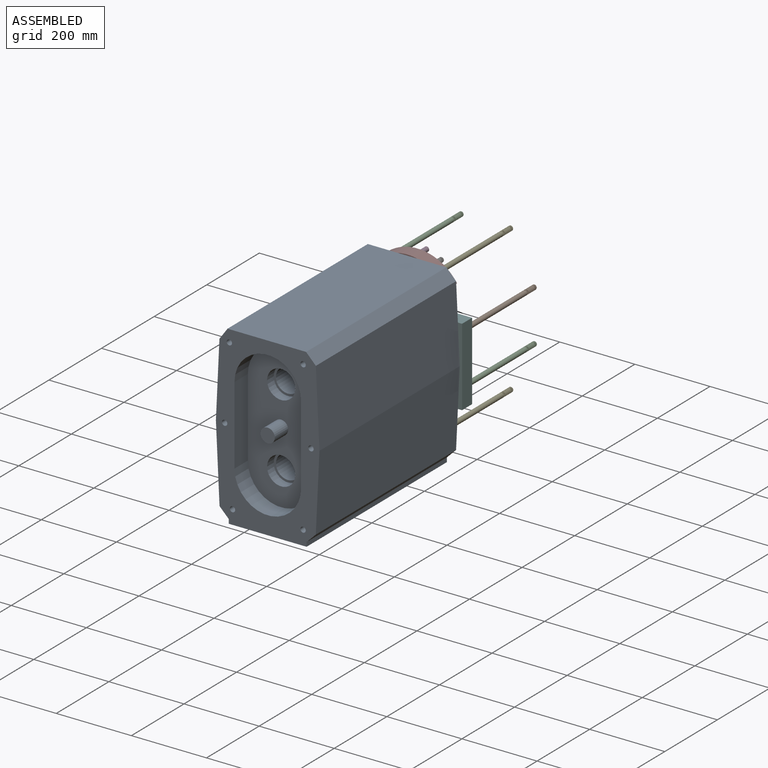
[diagram: assembled view]
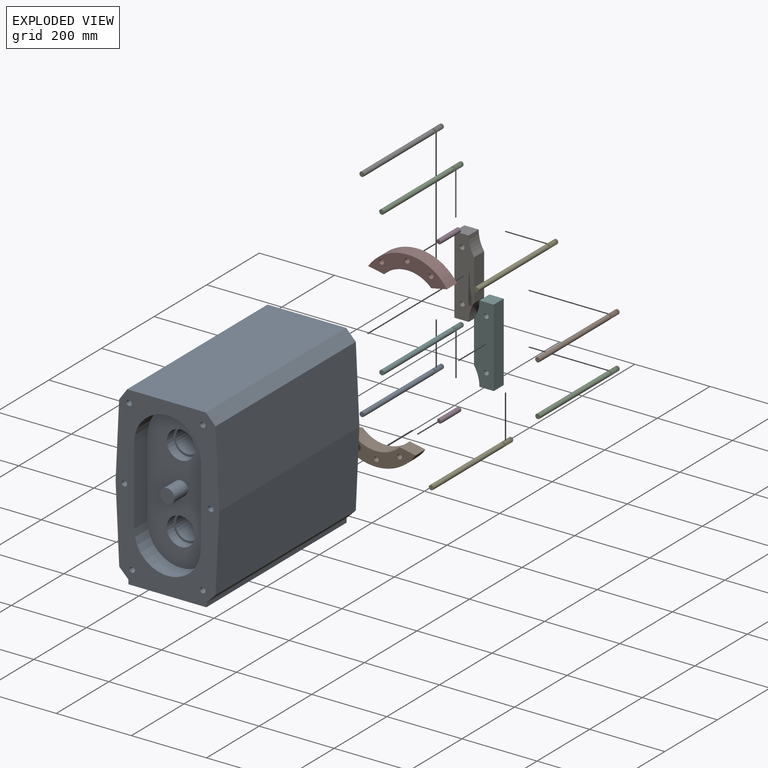
[diagram: exploded view]
GUIDED TOUR — MATED ASSEMBLY (Onshape document 5e63e25b57043aa21a5e92b4, AutoMate assembly 5e63e25b57043aa21a5e92b4_c13b6dc75398d16889b1cf8e_d6657fcba7f900bfe5659e96_default)

This assembly has 15 components, labeled P0..P14 below (a component is one placed occurrence of a part; the same part can appear more than once), held together by 14 mates. A mate is a constraint between two components; its type names the relative motion it leaves free:
  FASTENED — locks the two components together rigidly (no relative motion).
Axis/direction vectors are unit vectors and 'through' points are millimeter coordinates, both in the assembly's world frame.

MATES
  1. FASTENED "Fastened 7": P0 <-> P14, direction (0.000, -1.000, 0.000) through (-156.41, -14.34, 190.53) mm
  2. FASTENED "Fastened 5": P12 <-> P1, direction (0.000, -1.000, 0.000) through (27.95, -14.34, 63.78) mm
  3. FASTENED "Fastened 14": P11 <-> P7, direction (0.000, -1.000, 0.000) through (-36.14, -14.34, 471.87) mm
  4. FASTENED "Fastened 10": P4 <-> P7, direction (0.000, -1.000, 0.000) through (27.46, -14.34, 451.99) mm
  5. FASTENED "Fastened 4": P13 <-> P8, direction (0.000, -1.000, 0.000) through (85.79, -14.34, 255.66) mm
  6. FASTENED "Fastened 6": P5 <-> P1, direction (0.000, -1.000, 0.000) through (-103.74, -14.34, 64.39) mm
  7. FASTENED "Fastened 13": P3 <-> P1, direction (0.000, 1.000, 0.000) through (-33.88, -14.34, 41.42) mm
  8. FASTENED "Fastened 9": P10 <-> P7, direction (0.000, -1.000, 0.000) through (-104.22, -14.34, 450.86) mm
  9. FASTENED "Fastened 8": P6 <-> P14, direction (0.000, -1.000, 0.000) through (-156.74, -14.34, 326.83) mm
  10. FASTENED "Fastened 2": P1 <-> P8, direction (0.000, -1.000, 0.000) through (-33.88, -14.34, 41.42) mm
  11. FASTENED "Fastened 1": P7 <-> P8, direction (0.000, -1.000, 0.000) through (-36.14, -14.34, 471.87) mm
  12. FASTENED "Fastened 3": P14 <-> P8, direction (0.000, -1.000, 0.000) through (-152.97, -14.34, 255.66) mm
  13. FASTENED "Fastened 12": P2 <-> P13, direction (0.000, -1.000, 0.000) through (90.73, -14.34, 190.53) mm
  14. FASTENED "Fastened 11": P9 <-> P13, direction (0.000, -1.000, 0.000) through (90.40, -14.34, 326.83) mm

ASSEMBLY ORDER
  1. P7 — the base component [order verified]
  2. P11 [order verified]
  3. P1 [order verified]
  4. P3 [order verified]
  5. P12 [order verified]
  6. P5 [order verified]
  7. P10 [order verified]
  8. P4 [order verified]
  9. P14 [order verified]
  10. P0 [order verified]
  11. P6 [order verified]
  12. P13 [order verified]
  13. P9 [order verified]
  14. P2 [order verified]
  15. P8 [order verified]
Order-tag legend:
  [order verified] — this step's position reverses a verified removal order: the component was checked to insert without passing through the ones already placed.

Of the 15 components, 2 carry the full construction recipe — the FeatureScript program that regenerates the part's solid from scratch; the rest are supplied as boundary geometry only.
Because this assembly has more than 12 components, the tour below covers the 12 most significant ones individually (every recipe-attached component first, then the largest by part volume), in assembly order; the remaining 3 are summarized together in a grouped section at the end.
Each toured component is shown spotlighted twice — in the assembled view, then in the exploded view, where a leader line traces a displaced component back to its assembled socket (saturated green if recipe-attached, orange if geometry-only; every other component desaturated gray) — followed by its recipe or geometry summary and the mates that hold it.
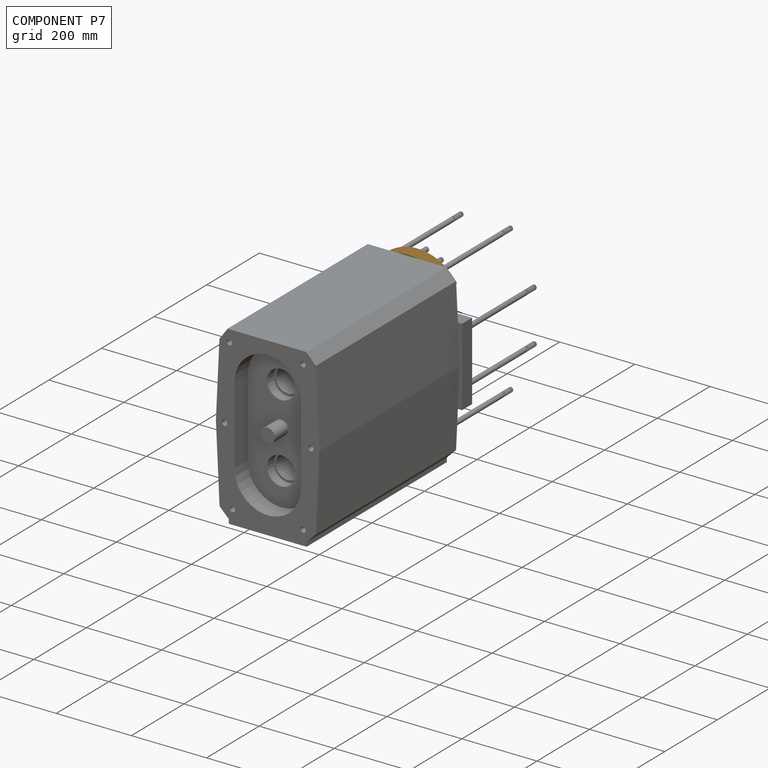
[diagram: component P7 — assembled]
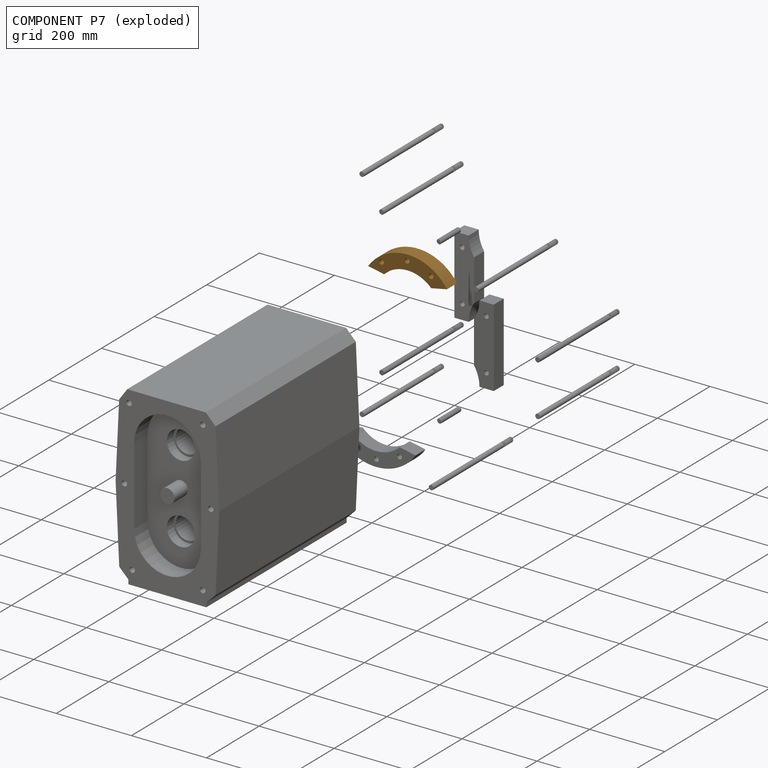
[diagram: component P7 — exploded]
COMPONENT P7 — geometry summary (no construction recipe available for this part):
  bounding box: 210.0 x 64.0 x 38.1 mm
  B-rep topology: 1 solid, 9 faces, 48 edges
  volume: 266649 mm^3 (52% of its bounding box)
  symmetry: mirror-symmetric across its y mid-plane
Held by: FASTENED mate "Fastened 14" to P11; FASTENED mate "Fastened 10" to P4; FASTENED mate "Fastened 9" to P10; FASTENED mate "Fastened 1" to P8.
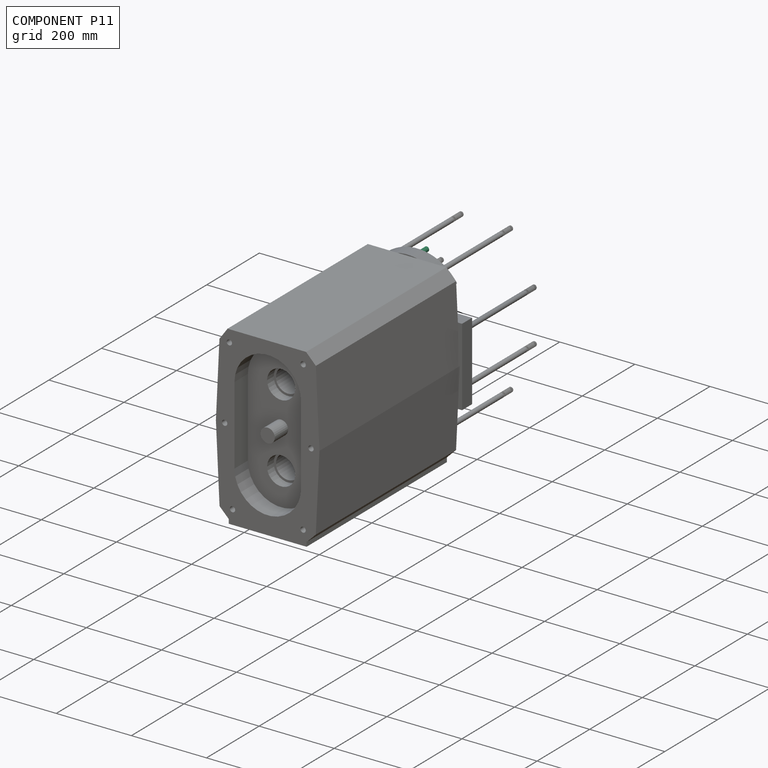
[diagram: component P11 — assembled]
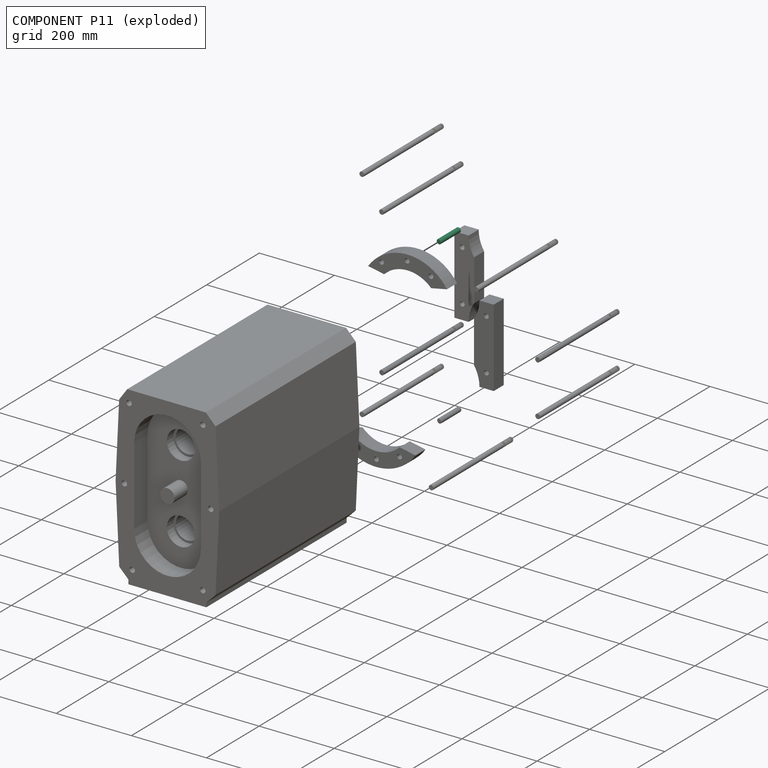
[diagram: component P11 — exploded]
COMPONENT P11 — same part as P3 (CADFS 00570136); its construction recipe is shown at P3.
Held by: FASTENED mate "Fastened 14" to P7.
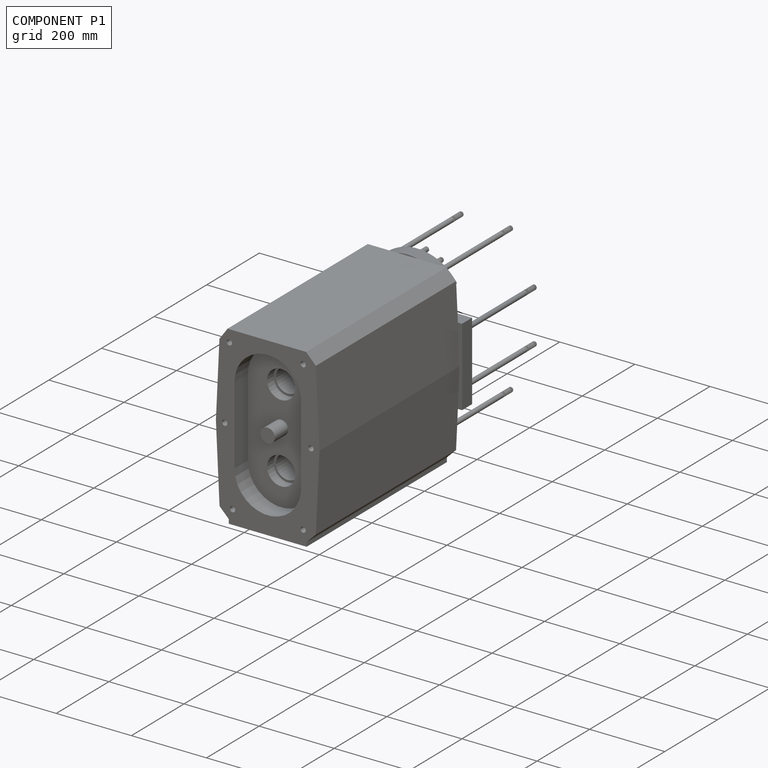
[diagram: component P1 — assembled]
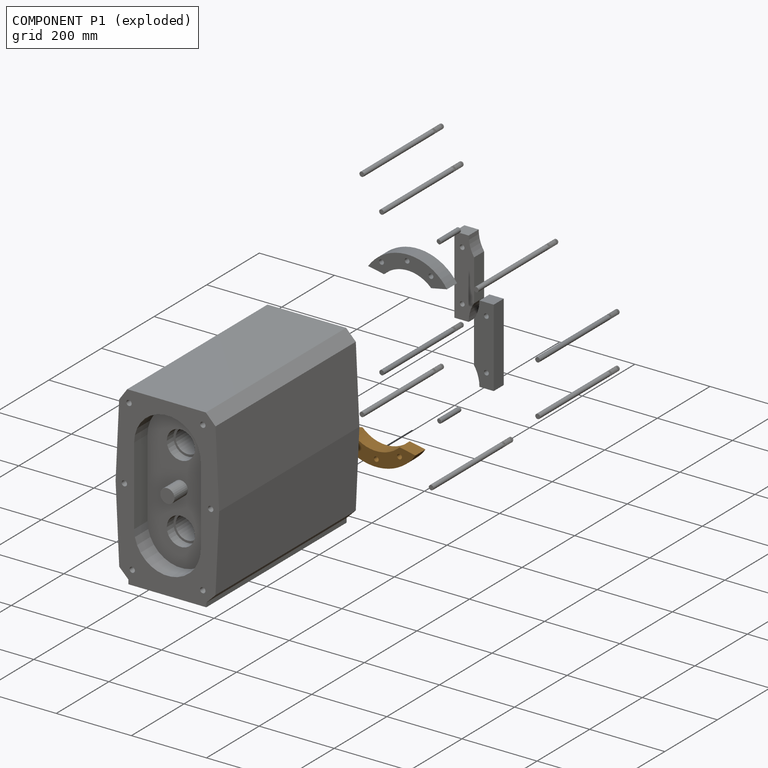
[diagram: component P1 — exploded]
COMPONENT P1 — geometry summary (no construction recipe available for this part):
  bounding box: 210.0 x 64.1 x 38.1 mm
  B-rep topology: 1 solid, 9 faces, 48 edges
  volume: 266669 mm^3 (52% of its bounding box)
  symmetry: mirror-symmetric across its y mid-plane
Held by: FASTENED mate "Fastened 5" to P12; FASTENED mate "Fastened 6" to P5; FASTENED mate "Fastened 13" to P3; FASTENED mate "Fastened 2" to P8.
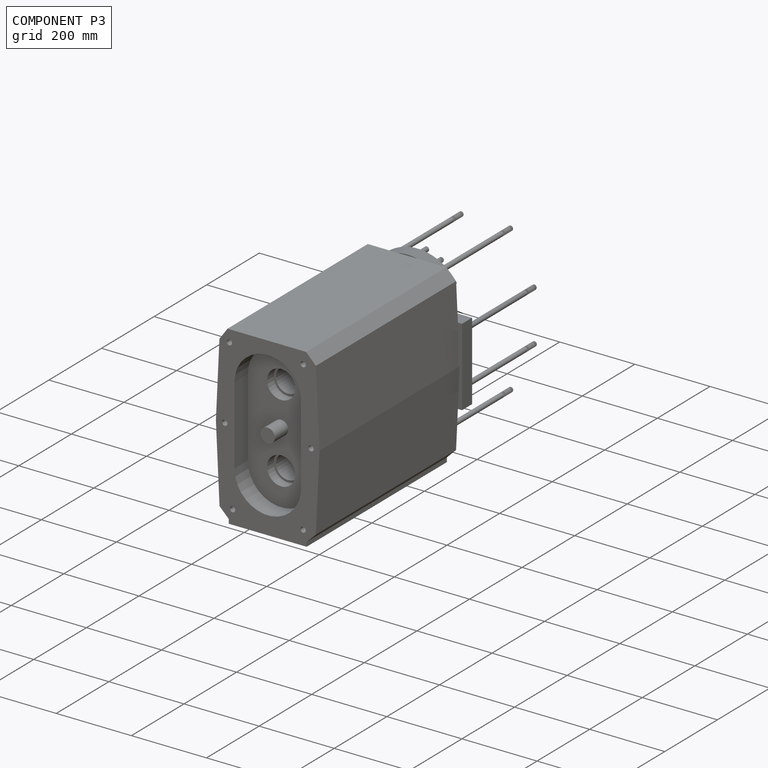
[diagram: component P3 — assembled]
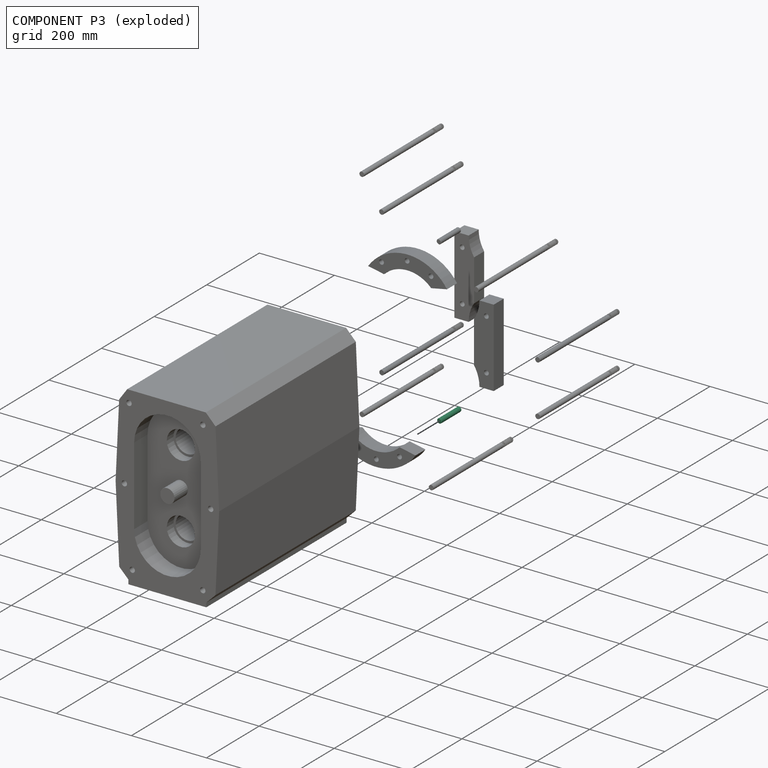
[diagram: component P3 — exploded]
COMPONENT P3 — recipe-attached (CADFS 00570136, mesh-verified: the recipe's output STEP matches this component's geometry to below the mesh-comparison resolution (tessellation chordal tolerance ~0.117 mm)).
Held by: FASTENED mate "Fastened 13" to P1.
Construction recipe (FeatureScript — the CAD program that rebuilds this solid; sketch coordinates are in the units given by the * unit suffixes, e.g. mm):

FeatureScript 1511;
import(path : "onshape/std/geometry.fs", version : "1511.0");
import(path : "onshape/std/common.fs", version : "1511.0");
const mm = millimeter;
const VERTEX = EntityType.VERTEX;
const EDGE = EntityType.EDGE;
const FACE = EntityType.FACE;
const BODY = EntityType.BODY;
function v(x, y){return vector(x, y);}
function OD(order){return orderDisambiguation(order);}
function OSD(set){return originalSetDisambiguation(set);}
function TD(topology){return topologyDisambiguation(topology);}
function TDD(query){return trueDependencyDisambiguation(query);}
function sQuery(a, b, c) {return sketchEntityQuery(a, b, c);}

annotation { "Feature Type Name" : "Feature", "Feature Type Description" : "" }
export const myFeature = defineFeature(function(context is Context, id is Id, definition is map)
    precondition{}
    {
        {
            var Q0;
            Q0=qCreatedBy(makeId("Front.planeOp"),FACE);
            var sketch = newSketch(context, id + "F0", { "sketchPlane" : qUnion([Q0])});
            skCircle(sketch, "E0", {"center": v(0, 0) * mm, "radius": 6.35 * mm});
            skSolve(sketch);
        }
        {
            var Q0;
            Q0=makeQuery(id+"F0.imprint","IMPRINT",FACE,{"disambiguationData":[TD([[makeQuery(id+"F0.imprint","IMPRINT",EDGE,{"derivedFrom":sQuery(id+"F0.wireOp",EDGE,"E0")}),1.0]])]});
            extrude(context, id + "F1", {"entities" : qUnion([Q0]), "depth" : 76.2 * mm, "offsetDistance" : 25.4 * mm});
        }
        {
            var Q0;
            Q0=makeQuery(id+"F1.opExtrude","CAP_EDGE",EDGE,{"disambiguationData":[OSD([sQuery(id+"F0.wireOp",EDGE,"E0")])],"isStart":false});
            var Q1;
            Q1=makeQuery(id+"F1.opExtrude","CAP_EDGE",EDGE,{"disambiguationData":[OSD([sQuery(id+"F0.wireOp",EDGE,"E0")])],"isStart":true});
            chamfer(context, id + "F2", {"entities" : qUnion([Q0, Q1]), "width" : 1.27 * mm, "tangentPropagation" : true});
        }
    });
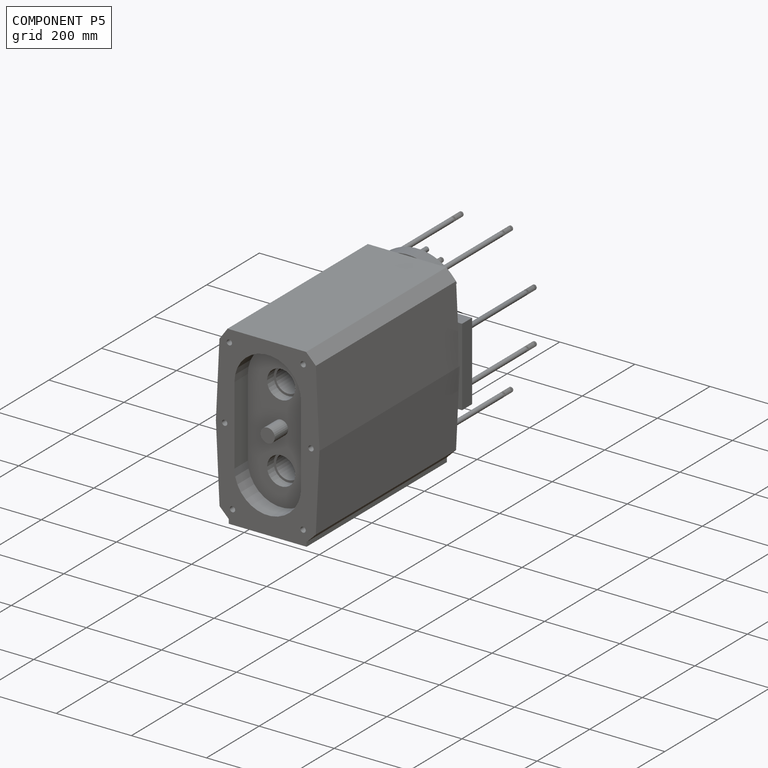
[diagram: component P5 — assembled]
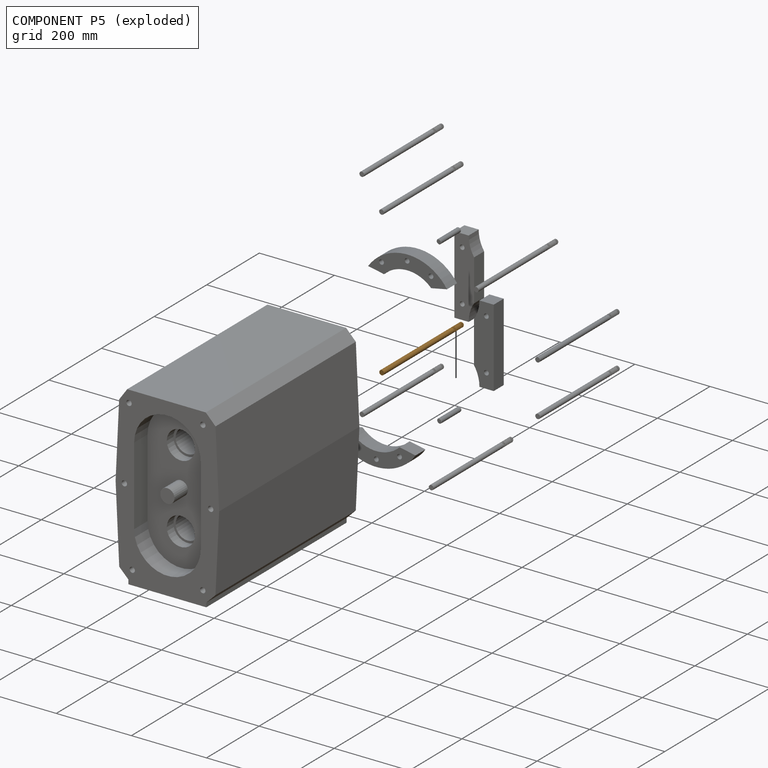
[diagram: component P5 — exploded]
COMPONENT P5 — geometry summary (no construction recipe available for this part):
  bounding box: 306.1 x 14.1 x 13.5 mm
  B-rep topology: 1 solid, 27 faces, 304 edges
  volume: 37703 mm^3 (65% of its bounding box)
  symmetry: revolution-symmetric about the y axis through its bounding-box center; mirror-symmetric across its z mid-plane
Held by: FASTENED mate "Fastened 6" to P1.
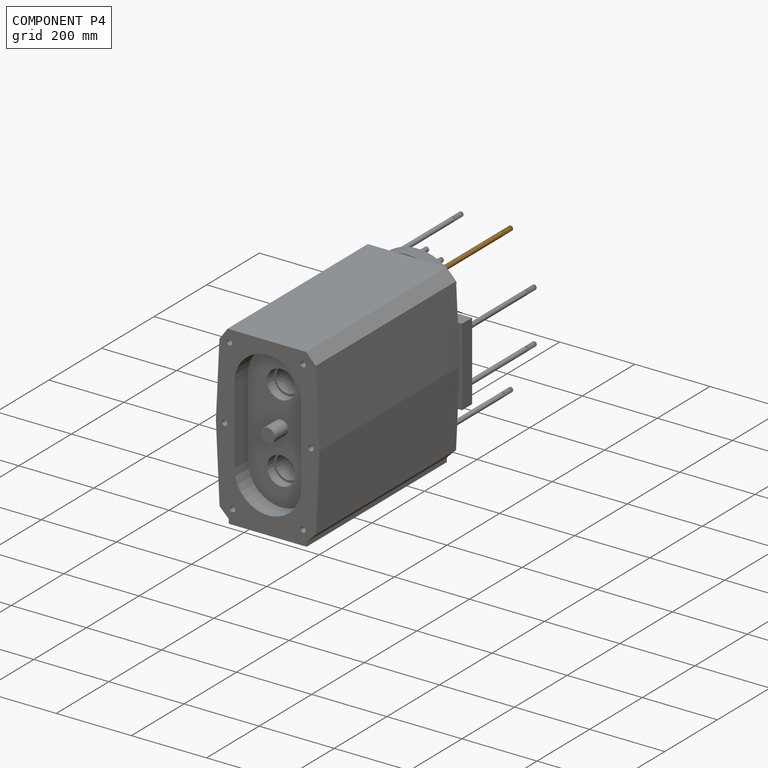
[diagram: component P4 — assembled]
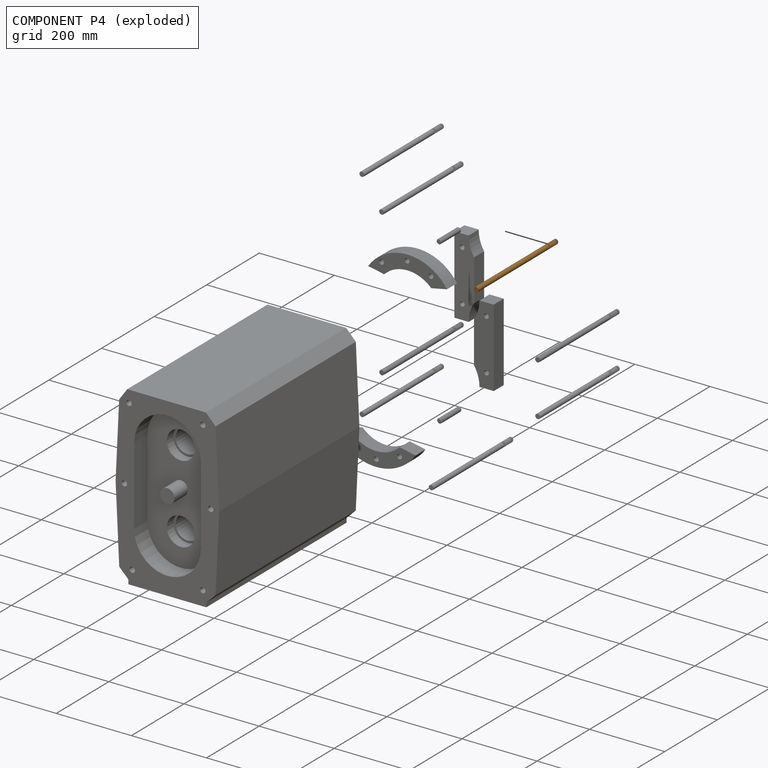
[diagram: component P4 — exploded]
COMPONENT P4 — geometry summary (no construction recipe available for this part):
  bounding box: 306.1 x 14.1 x 13.5 mm
  B-rep topology: 1 solid, 27 faces, 304 edges
  volume: 37703 mm^3 (65% of its bounding box)
  symmetry: revolution-symmetric about the y axis through its bounding-box center; mirror-symmetric across its z mid-plane
Held by: FASTENED mate "Fastened 10" to P7.
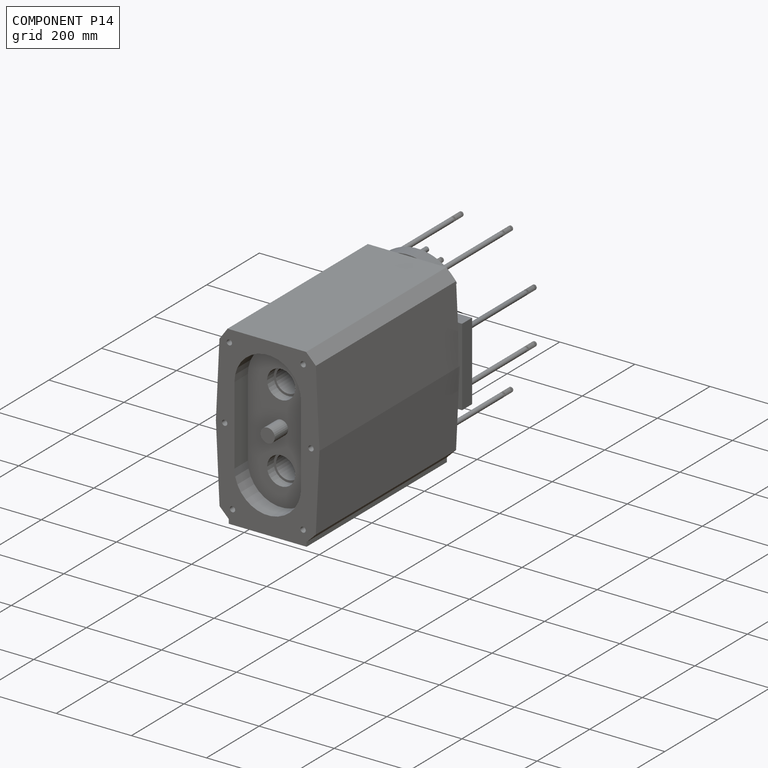
[diagram: component P14 — assembled]
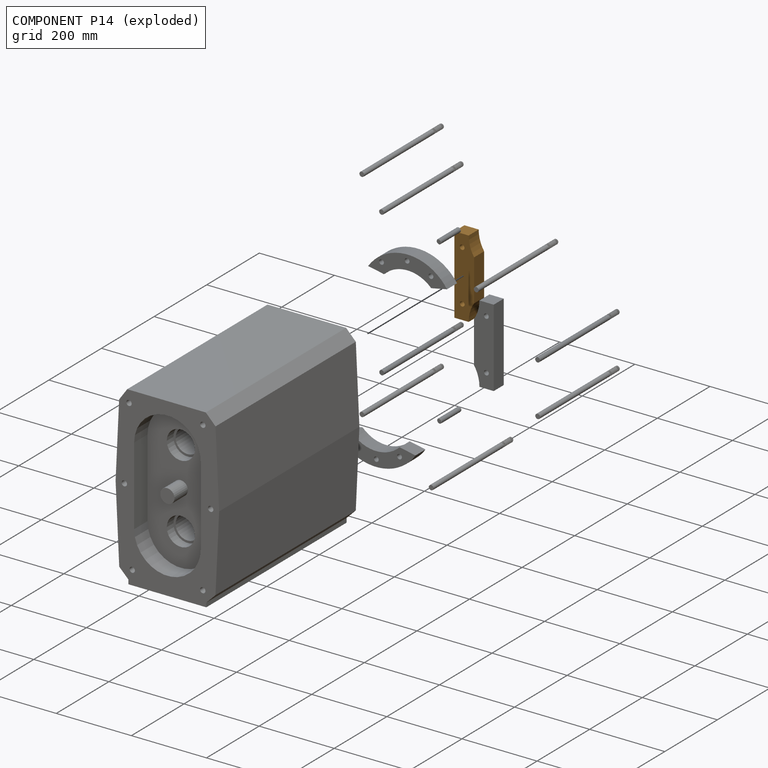
[diagram: component P14 — exploded]
COMPONENT P14 — geometry summary (no construction recipe available for this part):
  bounding box: 207.9 x 52.6 x 38.1 mm
  B-rep topology: 1 solid, 10 faces, 52 edges
  volume: 370398 mm^3 (89% of its bounding box)
  symmetry: mirror-symmetric across its y mid-plane
Held by: FASTENED mate "Fastened 7" to P0; FASTENED mate "Fastened 8" to P6; FASTENED mate "Fastened 3" to P8.
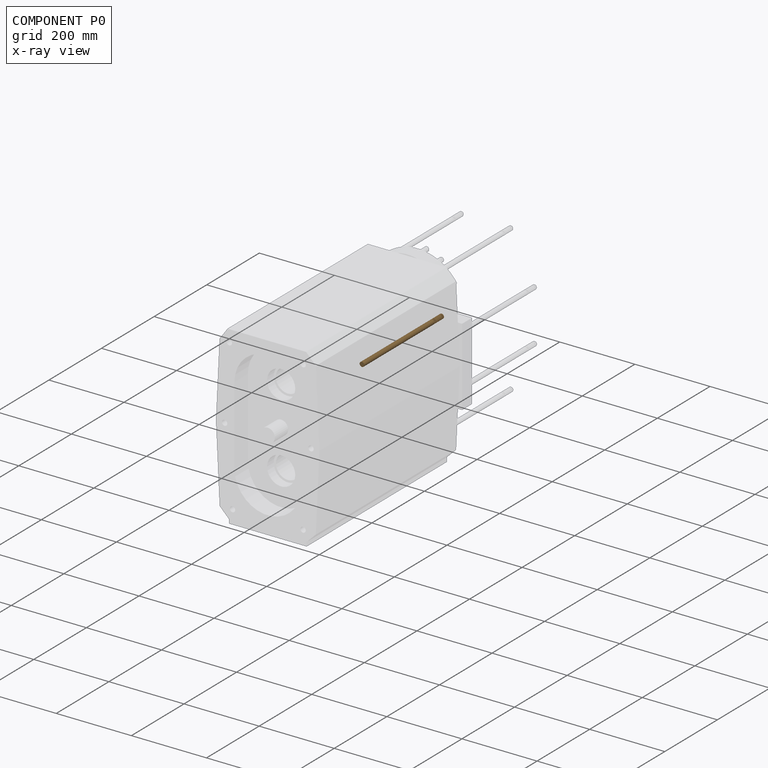
[diagram: component P0 — x-ray view]
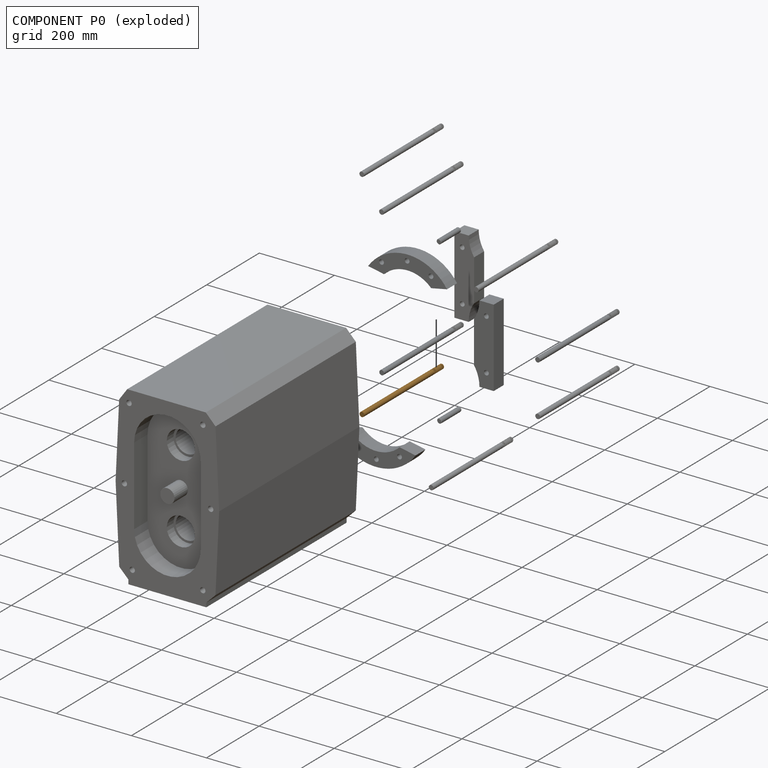
[diagram: component P0 — exploded]
COMPONENT P0 — geometry summary (no construction recipe available for this part):
  bounding box: 306.1 x 14.1 x 13.5 mm
  B-rep topology: 1 solid, 27 faces, 304 edges
  volume: 37703 mm^3 (65% of its bounding box)
  symmetry: revolution-symmetric about the y axis through its bounding-box center; mirror-symmetric across its z mid-plane
Held by: FASTENED mate "Fastened 7" to P14.
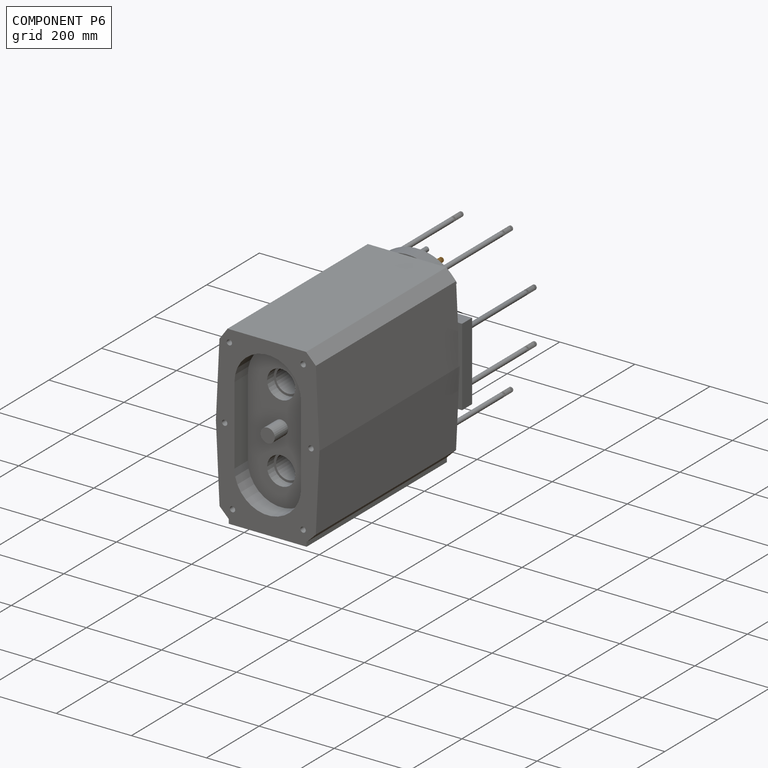
[diagram: component P6 — assembled]
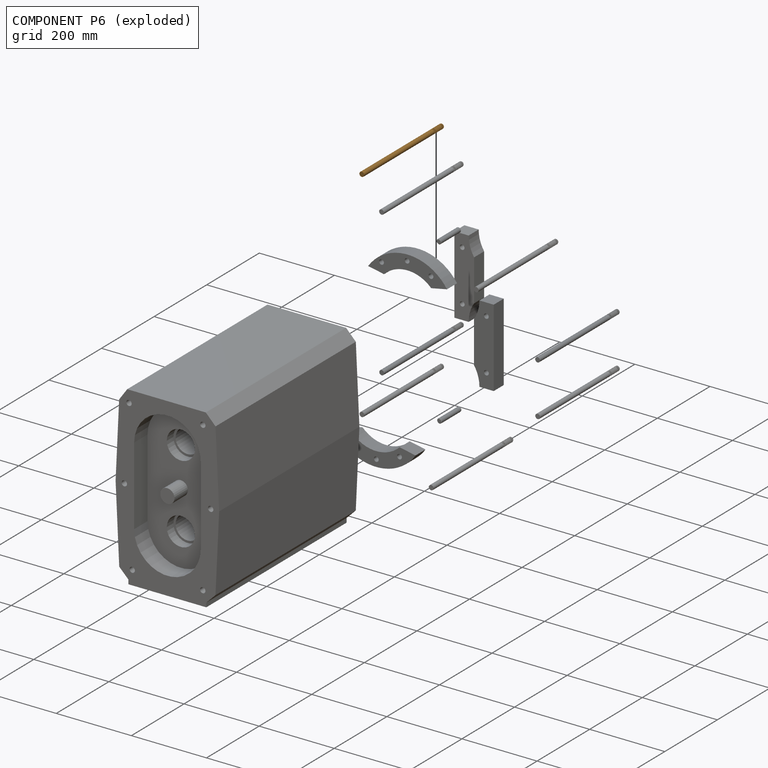
[diagram: component P6 — exploded]
COMPONENT P6 — geometry summary (no construction recipe available for this part):
  bounding box: 306.1 x 14.1 x 13.5 mm
  B-rep topology: 1 solid, 27 faces, 304 edges
  volume: 37703 mm^3 (65% of its bounding box)
  symmetry: revolution-symmetric about the y axis through its bounding-box center; mirror-symmetric across its z mid-plane
Held by: FASTENED mate "Fastened 8" to P14.
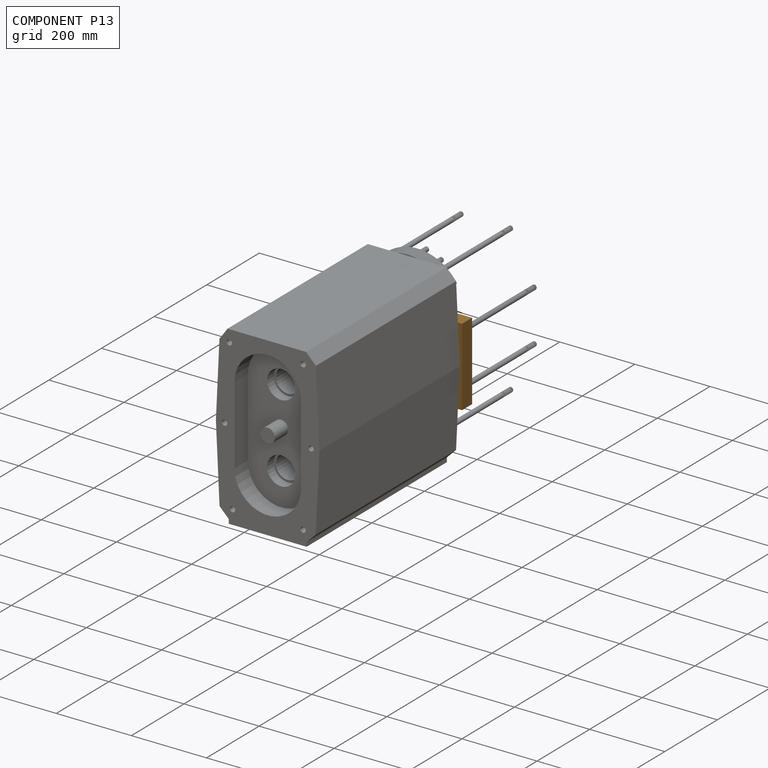
[diagram: component P13 — assembled]
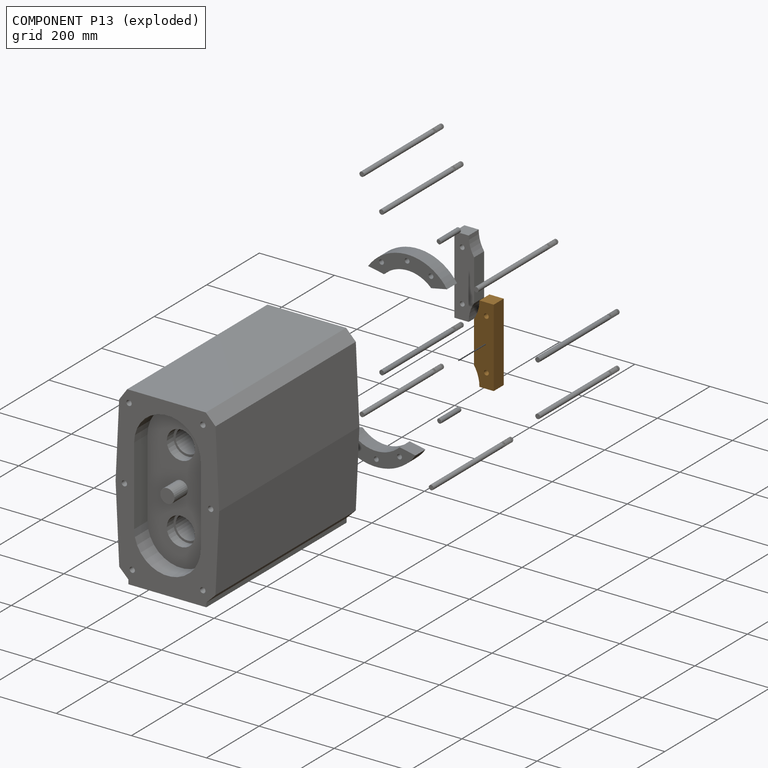
[diagram: component P13 — exploded]
COMPONENT P13 — geometry summary (no construction recipe available for this part):
  bounding box: 207.9 x 52.6 x 38.1 mm
  B-rep topology: 1 solid, 10 faces, 52 edges
  volume: 370398 mm^3 (89% of its bounding box)
  symmetry: mirror-symmetric across its y mid-plane
Held by: FASTENED mate "Fastened 4" to P8; FASTENED mate "Fastened 12" to P2; FASTENED mate "Fastened 11" to P9.
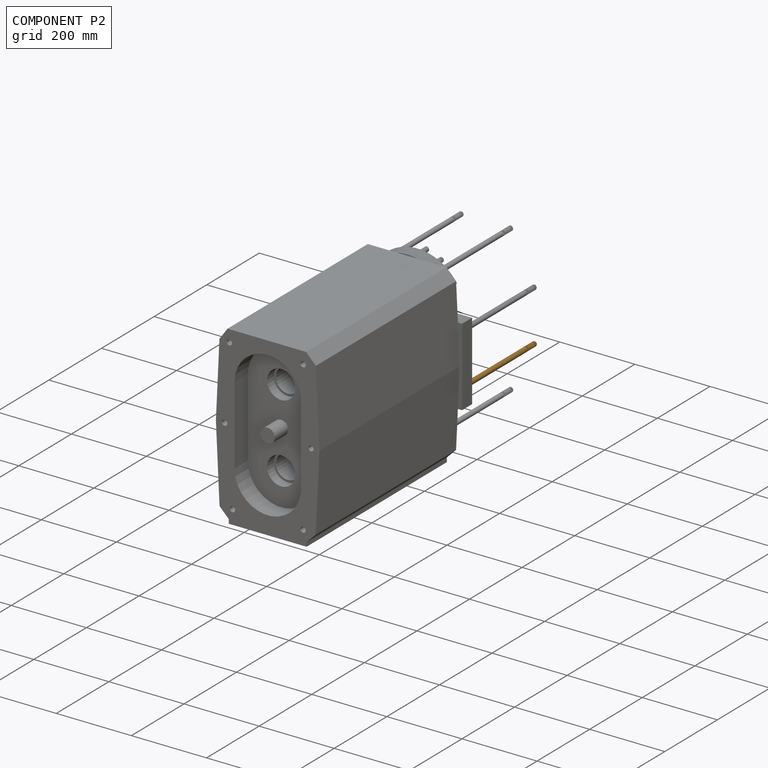
[diagram: component P2 — assembled]
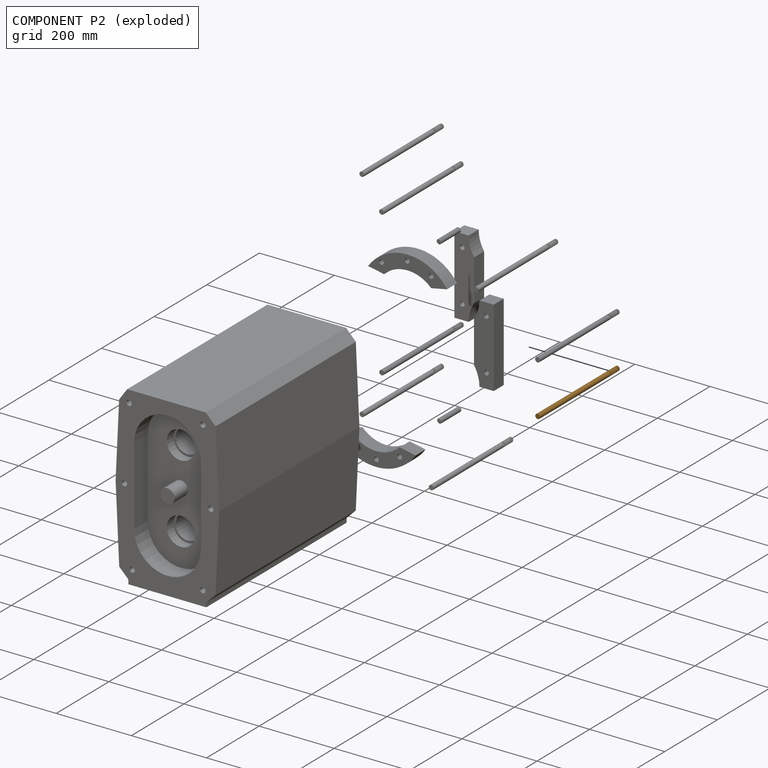
[diagram: component P2 — exploded]
COMPONENT P2 — geometry summary (no construction recipe available for this part):
  bounding box: 306.1 x 14.1 x 13.5 mm
  B-rep topology: 1 solid, 27 faces, 304 edges
  volume: 37703 mm^3 (65% of its bounding box)
  symmetry: revolution-symmetric about the y axis through its bounding-box center; mirror-symmetric across its z mid-plane
Held by: FASTENED mate "Fastened 12" to P13.
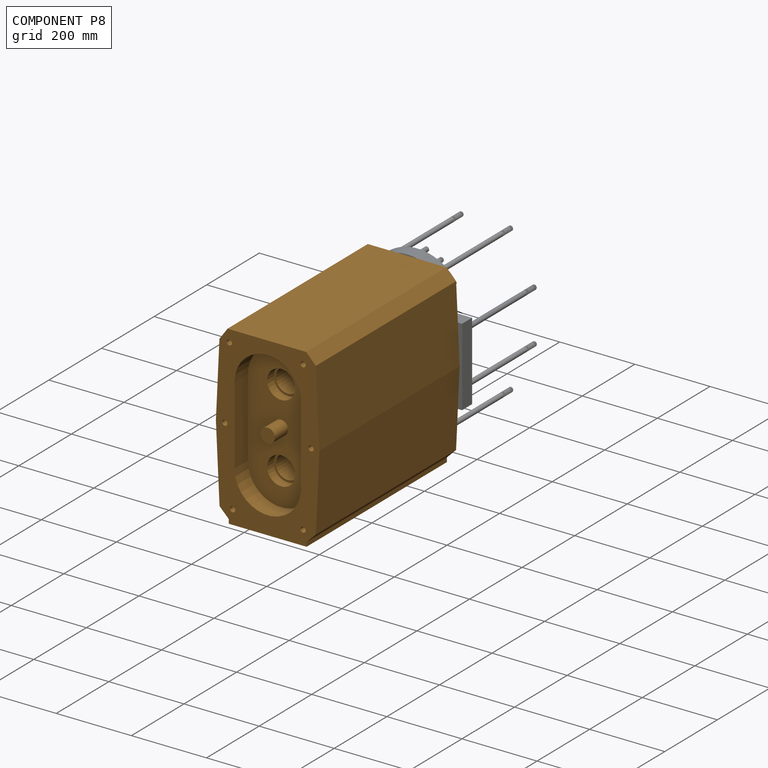
[diagram: component P8 — assembled]
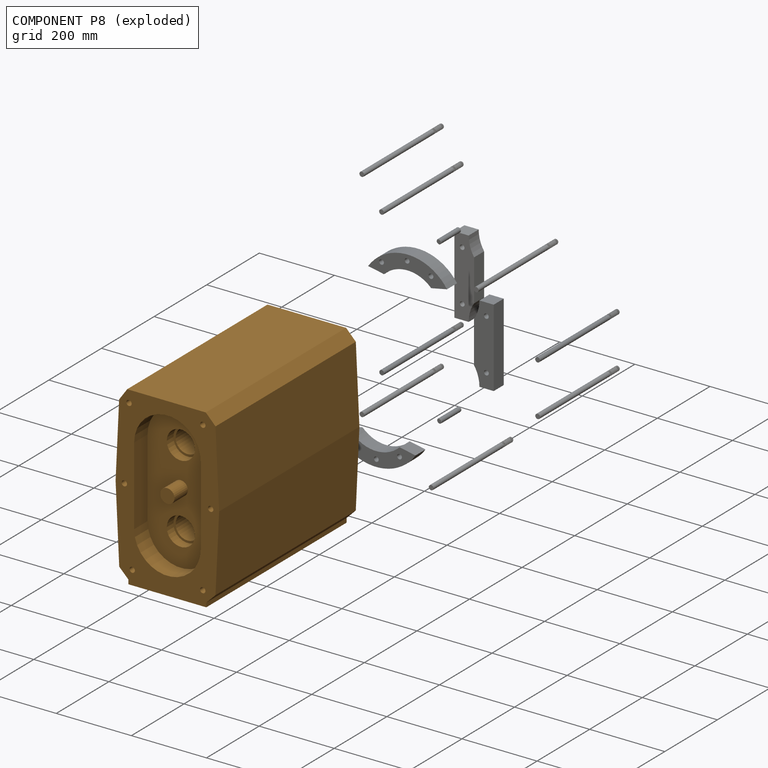
[diagram: component P8 — exploded]
COMPONENT P8 — geometry summary (no construction recipe available for this part):
  bounding box: 533.4 x 468.6 x 275.7 mm
  B-rep topology: 1 solid, 62 faces, 284 edges
  volume: 56065253 mm^3 (81% of its bounding box)
Held by: FASTENED mate "Fastened 4" to P13; FASTENED mate "Fastened 2" to P1; FASTENED mate "Fastened 1" to P7; FASTENED mate "Fastened 3" to P14.
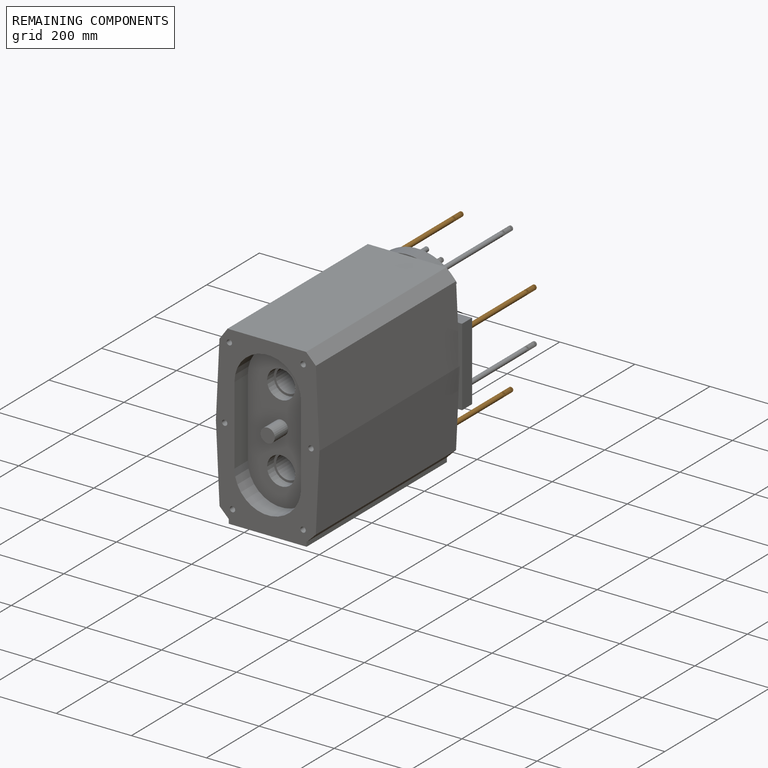
[diagram: remaining components — assembled]
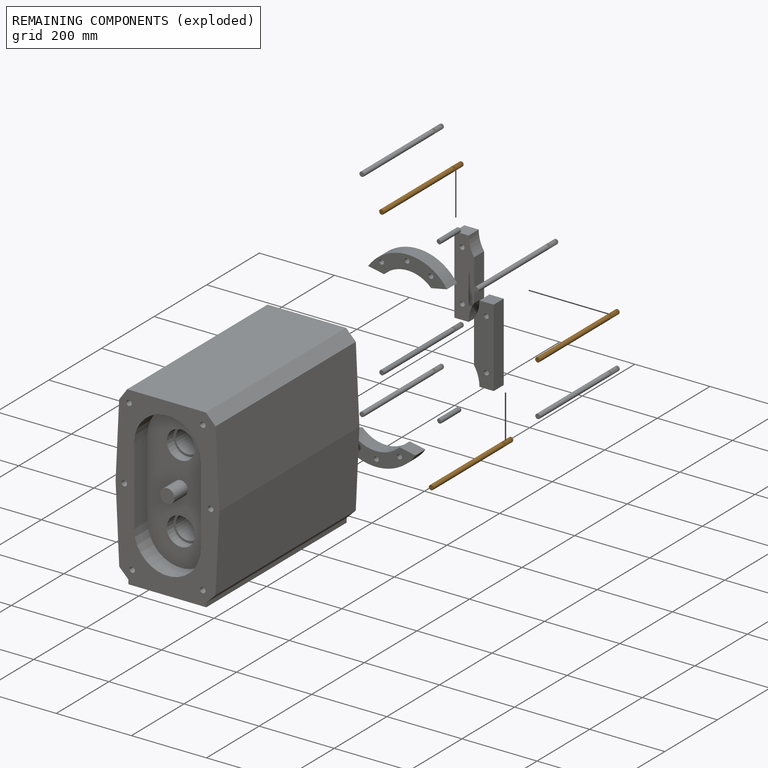
[diagram: remaining components — exploded]
REMAINING COMPONENTS (grouped) — the 3 components below fall outside the per-component tour by the significance rule stated above; both spotlight views highlight the whole group.
  P12: bounding box 306.1 x 14.1 x 13.5 mm, volume 37703 mm^3. Held by: FASTENED mate "Fastened 5" to P1.
  P10: bounding box 306.1 x 14.1 x 13.5 mm, volume 37703 mm^3. Held by: FASTENED mate "Fastened 9" to P7.
  P9: bounding box 306.1 x 14.1 x 13.5 mm, volume 37703 mm^3. Held by: FASTENED mate "Fastened 11" to P13.
PROVENANCE & LICENSES
Assembly (occurrences, transforms, mates, per-part STEP geometry): AutoMate dataset, Zenodo record 7776208, CC0.
Construction recipes: CADFS (HuggingFace VladPyatov/CADFS, CC-BY-4.0, layered over the ABC dataset), FeatureScript reconstruction programs keyed by ABC model id.
Join: ABC meta listings map ABC model id -> Onshape documentId; within a shared document, parts are matched by geometric signature (bounding-box dims + volume at 0.1% relative tolerance, exact B-rep face/solid counts).
Verification: 2 of this assembly's 15 components carry a recipe attachment, and every attachment is mesh-verified: the CADFS STEP and the AutoMate member STEP were compared as meshes in their shared local frame (symmetric sampled-point-to-mesh distance); worst across the 2 attachments: below the mesh-comparison resolution (tessellation chordal tolerance ~0.117 mm) on a 78 mm part.
Renders: orthographic iso camera (az 35 / el 25); the floor grid conveys scale (grid pitch printed in each image; no ruler). In the exploded view each component is displaced by its stored offset vector: the offsets alone carry the explosion direction (mate normal/axis signs are not orientation cues and do not encode it), and separation distances are assigned per mate-chain, not proportionally to assembly-order depth.
